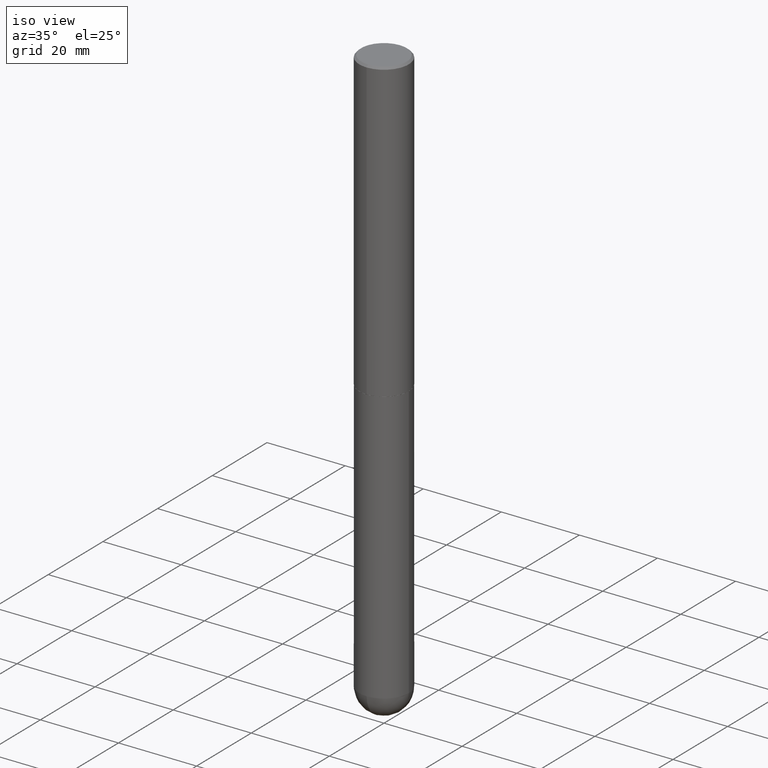
[diagram: clean part render]
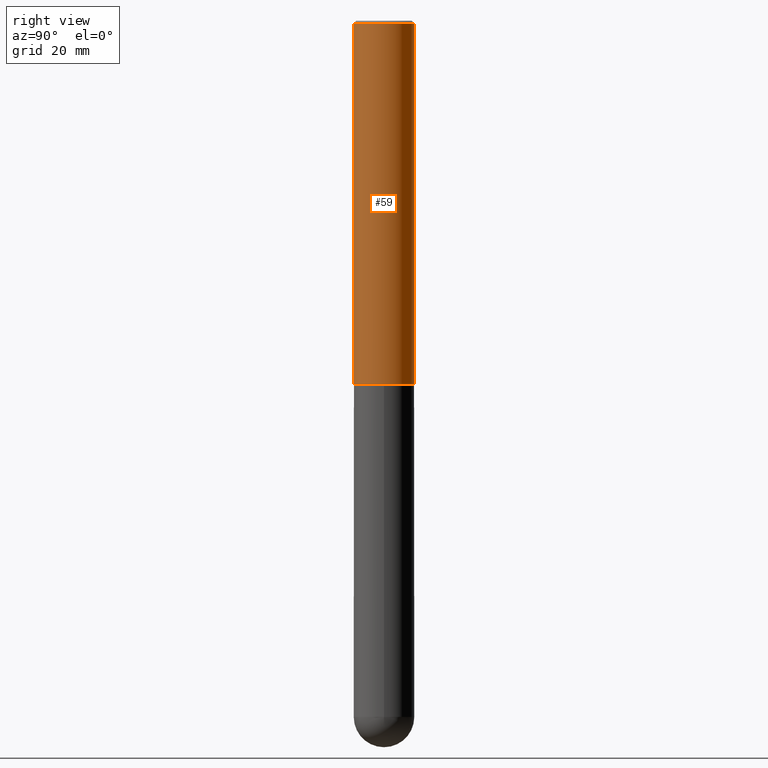
[diagram: tour spotlight — one face highlighted and labeled with its STEP entity id]
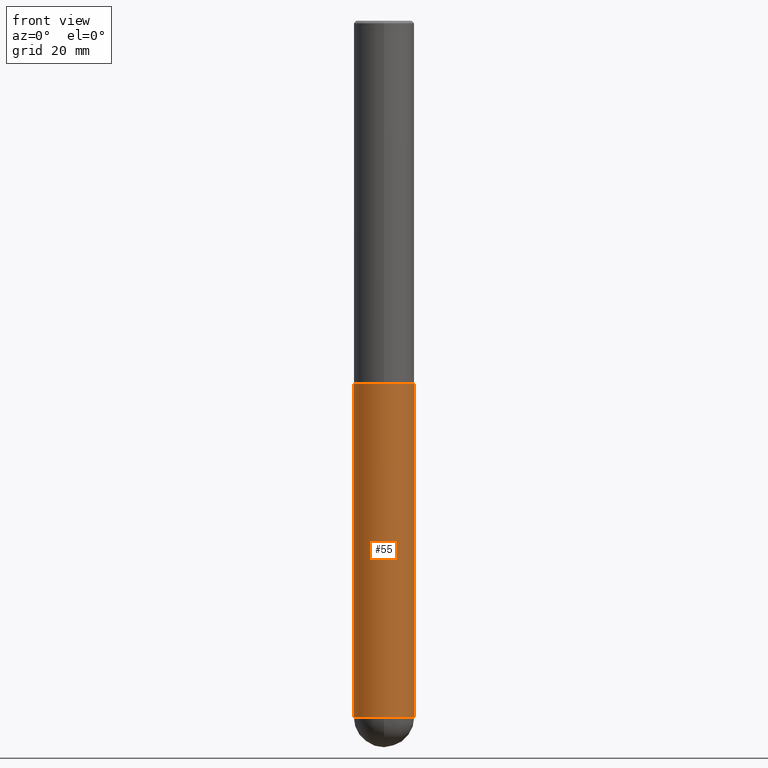
[diagram: tour spotlight — one face highlighted and labeled with its STEP entity id]
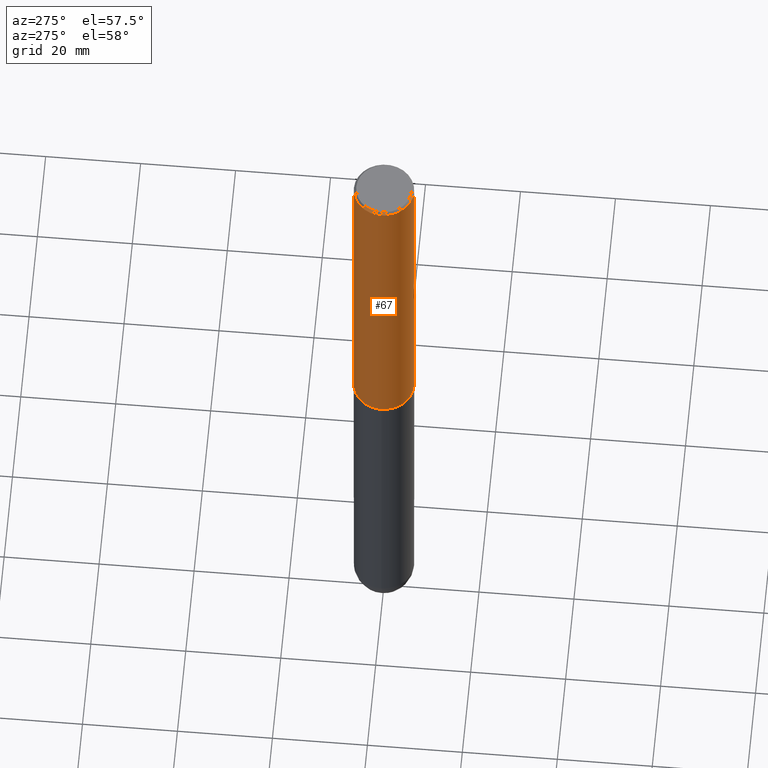
[diagram: tour spotlight — one face highlighted and labeled with its STEP entity id]
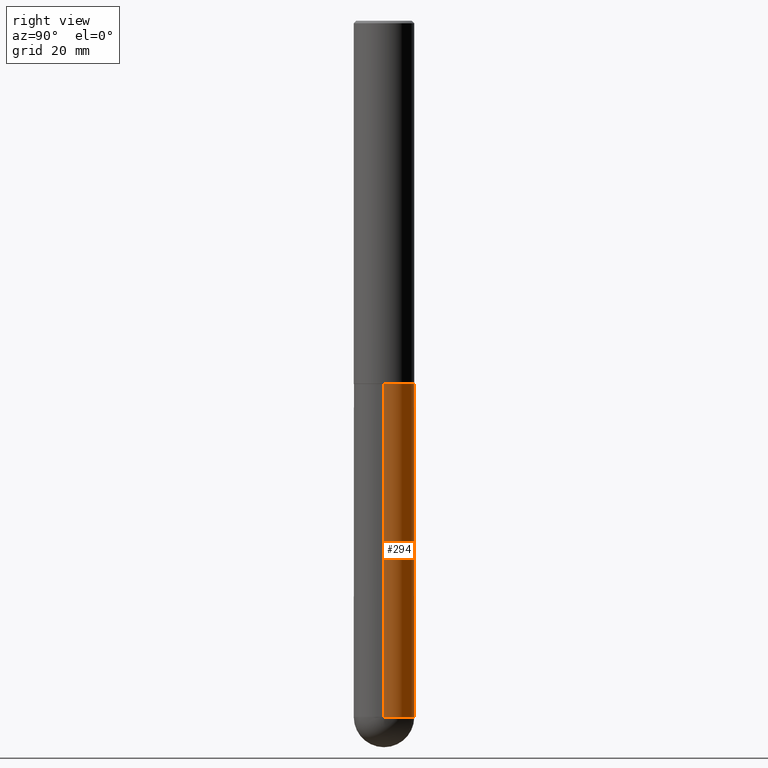
[diagram: tour spotlight — one face highlighted and labeled with its STEP entity id]
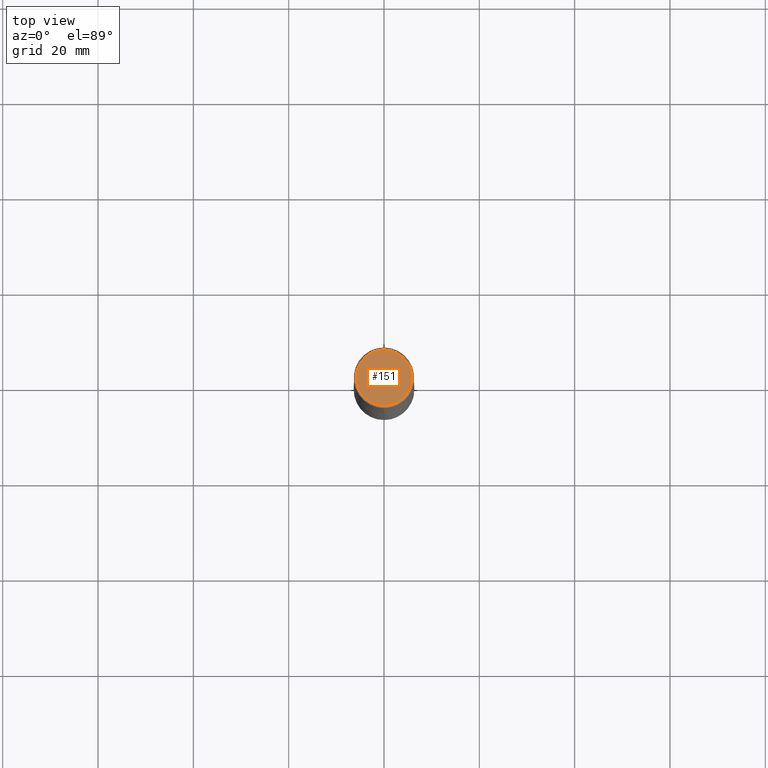
[diagram: tour spotlight — one face highlighted and labeled with its STEP entity id]
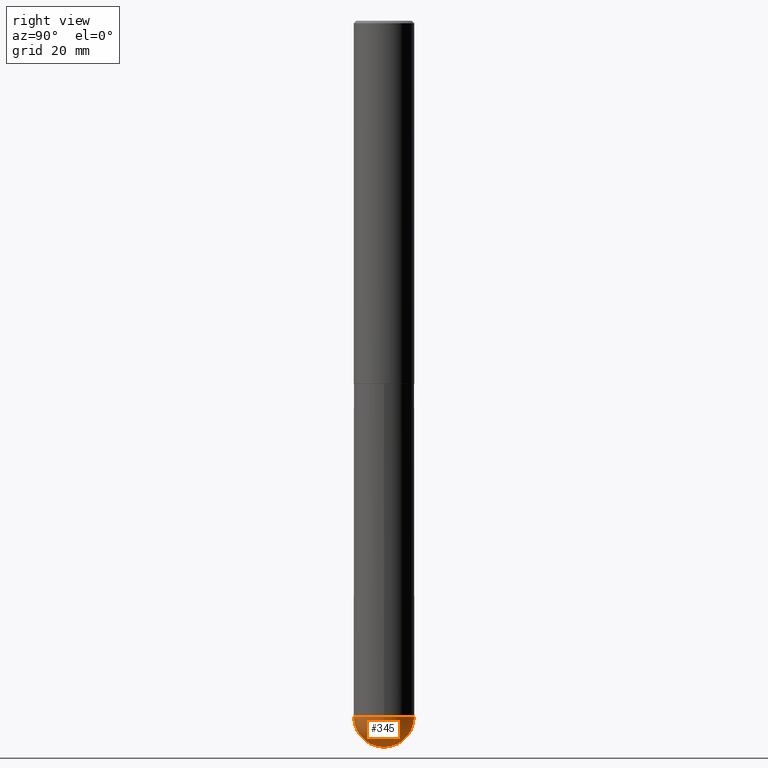
[diagram: tour spotlight — one face highlighted and labeled with its STEP entity id]
A machine part: a face-by-face anatomy tour. The part has 13 B-rep faces; the first image is the clean iso view, then the 6 largest visible faces are spotlighted one at a time (largest first), each with its STEP entity span.

Face 1 — right view, entity #59. In plain terms, the highlighted cylindrical surface (edge-blend (fillet) strip) has radius 6.35 mm, axis along (-0, 0, 1).
Definition (entity closure, byte-faithful):
#16 = DIRECTION ( 'NONE',  ( -2.445691460240369790E-29, 3.491162485563369808E-15, 1.000000000000000000 ) ) ;
#21 = CARTESIAN_POINT ( 'NONE',  ( 1.745740669421566875E-15, 0.2499999999999999167, -0.02000000000000092676 ) ) ;
#30 = FACE_OUTER_BOUND ( 'NONE', #105, .T. ) ;
#31 = EDGE_CURVE ( 'NONE', #140, #78, #185, .T. ) ;
#46 = EDGE_CURVE ( 'NONE', #206, #278, #70, .T. ) ;
#47 = DIRECTION ( 'NONE',  ( -2.445691460240369790E-29, 3.491162485563369808E-15, 1.000000000000000000 ) ) ;
#50 = VECTOR ( 'NONE', #405, 39.37007874015748143 ) ;
#59 = ADVANCED_FACE ( 'NONE', ( #30 ), #87, .T. ) ;
#60 = AXIS2_PLACEMENT_3D ( 'NONE', #239, #16, #330 ) ;
#62 = CARTESIAN_POINT ( 'NONE',  ( 1.776356839400289119E-15, 0.2499999999999898415, -2.999000000000001442 ) ) ;
#70 = LINE ( 'NONE', #329, #280 ) ;
#78 = VERTEX_POINT ( 'NONE', #218 ) ;
#87 = CYLINDRICAL_SURFACE ( 'NONE', #60, 0.2500000000000001665 ) ;
#92 = DIRECTION ( 'NONE',  ( -6.982962677686265922E-15, -1.000000000000000000, 3.483106191921935554E-15 ) ) ;
#95 = CIRCLE ( 'NONE', #319, 0.2500000000000000000 ) ;
#105 = EDGE_LOOP ( 'NONE', ( #145, #212, #270, #148 ) ) ;
#119 = CARTESIAN_POINT ( 'NONE',  ( -1.745740669421495680E-15, -0.2500000000000108247, -2.998999999999999222 ) ) ;
#140 = VERTEX_POINT ( 'NONE', #119 ) ;
#145 = ORIENTED_EDGE ( 'NONE', *, *, #220, .T. ) ;
#148 = ORIENTED_EDGE ( 'NONE', *, *, #31, .F. ) ;
#150 = CARTESIAN_POINT ( 'NONE',  ( -1.745740669421567664E-15, -0.2500000000000001665, 8.727906213908430437E-16 ) ) ;
#185 = LINE ( 'NONE', #150, #50 ) ;
#206 = VERTEX_POINT ( 'NONE', #62 ) ;
#207 = EDGE_CURVE ( 'NONE', #78, #278, #95, .T. ) ;
#212 = ORIENTED_EDGE ( 'NONE', *, *, #46, .T. ) ;
#218 = CARTESIAN_POINT ( 'NONE',  ( -1.715124499442882299E-15, -0.2500000000000000555, -0.01999999999999918510 ) ) ;
#220 = EDGE_CURVE ( 'NONE', #140, #206, #252, .T. ) ;
#239 = CARTESIAN_POINT ( 'NONE',  ( 0.000000000000000000, 0.000000000000000000, 0.000000000000000000 ) ) ;
#252 = CIRCLE ( 'NONE', #355, 0.2500000000000003331 ) ;
#261 = CARTESIAN_POINT ( 'NONE',  ( 7.334628689260870918E-29, -1.046999629420454738E-14, -2.999000000000000554 ) ) ;
#270 = ORIENTED_EDGE ( 'NONE', *, *, #207, .F. ) ;
#278 = VERTEX_POINT ( 'NONE', #21 ) ;
#280 = VECTOR ( 'NONE', #47, 39.37007874015748143 ) ;
#282 = CARTESIAN_POINT ( 'NONE',  ( 4.891382920480753452E-31, -6.982324971126759042E-17, -0.02000000000000005593 ) ) ;
#284 = DIRECTION ( 'NONE',  ( -6.982962677686265922E-15, -1.000000000000000000, 4.370956789862815627E-15 ) ) ;
#318 = DIRECTION ( 'NONE',  ( -2.445691460240369790E-29, 3.491162485563369808E-15, 1.000000000000000000 ) ) ;
#319 = AXIS2_PLACEMENT_3D ( 'NONE', #282, #318, #92 ) ;
#329 = CARTESIAN_POINT ( 'NONE',  ( 1.776356839400251254E-15, 0.2500000000000001665, -8.727906213908430437E-16 ) ) ;
#330 = DIRECTION ( 'NONE',  ( -6.982962677686265922E-15, -1.000000000000000000, 3.491162485563369808E-15 ) ) ;
#344 = DIRECTION ( 'NONE',  ( -2.445691460240369790E-29, 3.491162485563369808E-15, 1.000000000000000000 ) ) ;
#355 = AXIS2_PLACEMENT_3D ( 'NONE', #261, #344, #284 ) ;
#405 = DIRECTION ( 'NONE',  ( -2.445691460240369790E-29, 3.491162485563369808E-15, 1.000000000000000000 ) ) ;

Face 2 — front view, entity #55. In plain terms, the highlighted cylindrical surface (edge-blend (fillet) strip) has radius 6.35 mm, axis along (-0, 0, 1).
Definition (entity closure, byte-faithful):
#14 = FACE_OUTER_BOUND ( 'NONE', #402, .T. ) ;
#22 = EDGE_CURVE ( 'NONE', #56, #395, #311, .T. ) ;
#26 = CARTESIAN_POINT ( 'NONE',  ( 0.000000000000000000, 0.000000000000000000, 0.000000000000000000 ) ) ;
#28 = CARTESIAN_POINT ( 'NONE',  ( 1.406144563556453767E-28, -2.007601769834809252E-14, -5.750000000000000888 ) ) ;
#51 = VECTOR ( 'NONE', #396, 39.37007874015748143 ) ;
#55 = ADVANCED_FACE ( 'NONE', ( #14 ), #343, .T. ) ;
#56 = VERTEX_POINT ( 'NONE', #120 ) ;
#57 = DIRECTION ( 'NONE',  ( -2.445468806185136877E-29, 3.491481338843145188E-15, 1.000000000000000000 ) ) ;
#74 = CIRCLE ( 'NONE', #231, 0.2500000000000000000 ) ;
#110 = CARTESIAN_POINT ( 'NONE',  ( 0.2500000000000000000, -1.745740669421566678E-15, 1.219044193948983948E-29 ) ) ;
#116 = VERTEX_POINT ( 'NONE', #166 ) ;
#120 = CARTESIAN_POINT ( 'NONE',  ( -0.2500000000000000000, -1.349887401803851318E-14, -5.750000000000000888 ) ) ;
#125 = DIRECTION ( 'NONE',  ( 1.000000000000000000, -6.982962677686262766E-15, 0.000000000000000000 ) ) ;
#127 = AXIS2_PLACEMENT_3D ( 'NONE', #28, #292, #125 ) ;
#154 = EDGE_CURVE ( 'NONE', #395, #200, #209, .T. ) ;
#166 = CARTESIAN_POINT ( 'NONE',  ( 0.2500000000000000000, -1.702097152686033033E-14, -5.750000000000000888 ) ) ;
#167 = CARTESIAN_POINT ( 'NONE',  ( -0.2500000000000000000, 1.776356839400250465E-15, -1.229733772563726445E-29 ) ) ;
#169 = VECTOR ( 'NONE', #57, 39.37007874015748143 ) ;
#178 = CARTESIAN_POINT ( 'NONE',  ( -1.776356839400113597E-15, -0.2500000000000206501, -5.750000000000000000 ) ) ;
#186 = CARTESIAN_POINT ( 'NONE',  ( 0.2500000000000000000, -1.222018468595100303E-14, -3.000000000000000444 ) ) ;
#187 = DIRECTION ( 'NONE',  ( -2.445468806185136597E-29, 3.491481338843145583E-15, 1.000000000000000000 ) ) ;
#188 = DIRECTION ( 'NONE',  ( 1.000000000000000000, -6.982962677686266711E-15, 4.876176775795935793E-29 ) ) ;
#189 = AXIS2_PLACEMENT_3D ( 'NONE', #26, #253, #188 ) ;
#197 = VERTEX_POINT ( 'NONE', #178 ) ;
#200 = VERTEX_POINT ( 'NONE', #186 ) ;
#209 = CIRCLE ( 'NONE', #296, 0.2500000000000000000 ) ;
#231 = AXIS2_PLACEMENT_3D ( 'NONE', #346, #187, #314 ) ;
#242 = ORIENTED_EDGE ( 'NONE', *, *, #154, .F. ) ;
#244 = DIRECTION ( 'NONE',  ( 1.000000000000000000, -6.982962677686262766E-15, 0.000000000000000000 ) ) ;
#253 = DIRECTION ( 'NONE',  ( -2.445468806185136597E-29, 3.491481338843145583E-15, 1.000000000000000000 ) ) ;
#254 = EDGE_CURVE ( 'NONE', #197, #116, #74, .T. ) ;
#267 = EDGE_CURVE ( 'NONE', #116, #200, #297, .T. ) ;
#274 = ORIENTED_EDGE ( 'NONE', *, *, #22, .F. ) ;
#276 = CIRCLE ( 'NONE', #127, 0.2500000000000000000 ) ;
#291 = ORIENTED_EDGE ( 'NONE', *, *, #254, .T. ) ;
#292 = DIRECTION ( 'NONE',  ( -2.445468806185136597E-29, 3.491481338843145583E-15, 1.000000000000000000 ) ) ;
#296 = AXIS2_PLACEMENT_3D ( 'NONE', #404, #378, #244 ) ;
#297 = LINE ( 'NONE', #110, #51 ) ;
#302 = ORIENTED_EDGE ( 'NONE', *, *, #267, .T. ) ;
#311 = LINE ( 'NONE', #167, #169 ) ;
#313 = CARTESIAN_POINT ( 'NONE',  ( -0.2500000000000000000, -1.349887401803851318E-14, -3.000000000000000444 ) ) ;
#314 = DIRECTION ( 'NONE',  ( 1.000000000000000000, -6.982962677686262766E-15, 0.000000000000000000 ) ) ;
#320 = ORIENTED_EDGE ( 'NONE', *, *, #403, .T. ) ;
#343 = CYLINDRICAL_SURFACE ( 'NONE', #189, 0.2500000000000000000 ) ;
#346 = CARTESIAN_POINT ( 'NONE',  ( 1.406144563556453767E-28, -2.007601769834809252E-14, -5.750000000000000888 ) ) ;
#378 = DIRECTION ( 'NONE',  ( -2.445468806185136597E-29, 3.491481338843145583E-15, 1.000000000000000000 ) ) ;
#395 = VERTEX_POINT ( 'NONE', #313 ) ;
#396 = DIRECTION ( 'NONE',  ( -2.445468806185136877E-29, 3.491481338843145188E-15, 1.000000000000000000 ) ) ;
#402 = EDGE_LOOP ( 'NONE', ( #274, #320, #291, #302, #242 ) ) ;
#403 = EDGE_CURVE ( 'NONE', #56, #197, #276, .T. ) ;
#404 = CARTESIAN_POINT ( 'NONE',  ( 7.336406418555409790E-29, -1.047444401652943635E-14, -3.000000000000000444 ) ) ;

Face 3 — auxiliary view, entity #67. In plain terms, the highlighted cylindrical surface (edge-blend (fillet) strip) has radius 6.35 mm, axis along (-0, 0, 1).
Definition (entity closure, byte-faithful):
#6 = CIRCLE ( 'NONE', #295, 0.2500000000000000000 ) ;
#21 = CARTESIAN_POINT ( 'NONE',  ( 1.745740669421566875E-15, 0.2499999999999999167, -0.02000000000000092676 ) ) ;
#31 = EDGE_CURVE ( 'NONE', #140, #78, #185, .T. ) ;
#46 = EDGE_CURVE ( 'NONE', #206, #278, #70, .T. ) ;
#47 = DIRECTION ( 'NONE',  ( -2.445691460240369790E-29, 3.491162485563369808E-15, 1.000000000000000000 ) ) ;
#50 = VECTOR ( 'NONE', #405, 39.37007874015748143 ) ;
#62 = CARTESIAN_POINT ( 'NONE',  ( 1.776356839400289119E-15, 0.2499999999999898415, -2.999000000000001442 ) ) ;
#63 = EDGE_CURVE ( 'NONE', #278, #78, #6, .T. ) ;
#67 = ADVANCED_FACE ( 'NONE', ( #170 ), #73, .T. ) ;
#70 = LINE ( 'NONE', #329, #280 ) ;
#73 = CYLINDRICAL_SURFACE ( 'NONE', #222, 0.2500000000000001665 ) ;
#78 = VERTEX_POINT ( 'NONE', #218 ) ;
#94 = ORIENTED_EDGE ( 'NONE', *, *, #46, .F. ) ;
#98 = ORIENTED_EDGE ( 'NONE', *, *, #63, .F. ) ;
#107 = ORIENTED_EDGE ( 'NONE', *, *, #31, .T. ) ;
#119 = CARTESIAN_POINT ( 'NONE',  ( -1.745740669421495680E-15, -0.2500000000000108247, -2.998999999999999222 ) ) ;
#129 = DIRECTION ( 'NONE',  ( -6.982962677686265922E-15, -1.000000000000000000, 4.370956789862815627E-15 ) ) ;
#140 = VERTEX_POINT ( 'NONE', #119 ) ;
#144 = DIRECTION ( 'NONE',  ( -2.445691460240369790E-29, 3.491162485563369808E-15, 1.000000000000000000 ) ) ;
#150 = CARTESIAN_POINT ( 'NONE',  ( -1.745740669421567664E-15, -0.2500000000000001665, 8.727906213908430437E-16 ) ) ;
#170 = FACE_OUTER_BOUND ( 'NONE', #336, .T. ) ;
#179 = DIRECTION ( 'NONE',  ( -6.982962677686265922E-15, -1.000000000000000000, 3.491162485563369808E-15 ) ) ;
#182 = DIRECTION ( 'NONE',  ( -2.445691460240369790E-29, 3.491162485563369808E-15, 1.000000000000000000 ) ) ;
#185 = LINE ( 'NONE', #150, #50 ) ;
#206 = VERTEX_POINT ( 'NONE', #62 ) ;
#218 = CARTESIAN_POINT ( 'NONE',  ( -1.715124499442882299E-15, -0.2500000000000000555, -0.01999999999999918510 ) ) ;
#222 = AXIS2_PLACEMENT_3D ( 'NONE', #390, #144, #179 ) ;
#255 = DIRECTION ( 'NONE',  ( -2.445691460240369790E-29, 3.491162485563369808E-15, 1.000000000000000000 ) ) ;
#265 = DIRECTION ( 'NONE',  ( -6.982962677686265922E-15, -1.000000000000000000, 3.483106191921935554E-15 ) ) ;
#269 = CIRCLE ( 'NONE', #310, 0.2500000000000003331 ) ;
#278 = VERTEX_POINT ( 'NONE', #21 ) ;
#280 = VECTOR ( 'NONE', #47, 39.37007874015748143 ) ;
#295 = AXIS2_PLACEMENT_3D ( 'NONE', #337, #182, #265 ) ;
#310 = AXIS2_PLACEMENT_3D ( 'NONE', #381, #255, #129 ) ;
#329 = CARTESIAN_POINT ( 'NONE',  ( 1.776356839400251254E-15, 0.2500000000000001665, -8.727906213908430437E-16 ) ) ;
#336 = EDGE_LOOP ( 'NONE', ( #94, #397, #107, #98 ) ) ;
#337 = CARTESIAN_POINT ( 'NONE',  ( 4.891382920480753452E-31, -6.982324971126759042E-17, -0.02000000000000005593 ) ) ;
#381 = CARTESIAN_POINT ( 'NONE',  ( 7.334628689260870918E-29, -1.046999629420454738E-14, -2.999000000000000554 ) ) ;
#386 = EDGE_CURVE ( 'NONE', #206, #140, #269, .T. ) ;
#390 = CARTESIAN_POINT ( 'NONE',  ( 0.000000000000000000, 0.000000000000000000, 0.000000000000000000 ) ) ;
#397 = ORIENTED_EDGE ( 'NONE', *, *, #386, .T. ) ;
#405 = DIRECTION ( 'NONE',  ( -2.445691460240369790E-29, 3.491162485563369808E-15, 1.000000000000000000 ) ) ;

Face 4 — right view, entity #294. In plain terms, the highlighted cylindrical surface (edge-blend (fillet) strip) has radius 6.35 mm, axis along (-0, 0, 1).
Definition (entity closure, byte-faithful):
#11 = CARTESIAN_POINT ( 'NONE',  ( 1.406144563556453767E-28, -2.007601769834809252E-14, -5.750000000000000888 ) ) ;
#12 = DIRECTION ( 'NONE',  ( -2.445468806185136597E-29, 3.491481338843145583E-15, 1.000000000000000000 ) ) ;
#20 = VERTEX_POINT ( 'NONE', #338 ) ;
#22 = EDGE_CURVE ( 'NONE', #56, #395, #311, .T. ) ;
#39 = CIRCLE ( 'NONE', #83, 0.2500000000000000000 ) ;
#51 = VECTOR ( 'NONE', #396, 39.37007874015748143 ) ;
#52 = EDGE_LOOP ( 'NONE', ( #132, #171, #332, #53, #236 ) ) ;
#53 = ORIENTED_EDGE ( 'NONE', *, *, #267, .F. ) ;
#56 = VERTEX_POINT ( 'NONE', #120 ) ;
#57 = DIRECTION ( 'NONE',  ( -2.445468806185136877E-29, 3.491481338843145188E-15, 1.000000000000000000 ) ) ;
#66 = CARTESIAN_POINT ( 'NONE',  ( 7.336406418555409790E-29, -1.047444401652943635E-14, -3.000000000000000444 ) ) ;
#83 = AXIS2_PLACEMENT_3D ( 'NONE', #357, #12, #135 ) ;
#84 = EDGE_CURVE ( 'NONE', #200, #395, #347, .T. ) ;
#97 = EDGE_CURVE ( 'NONE', #20, #56, #39, .T. ) ;
#110 = CARTESIAN_POINT ( 'NONE',  ( 0.2500000000000000000, -1.745740669421566678E-15, 1.219044193948983948E-29 ) ) ;
#116 = VERTEX_POINT ( 'NONE', #166 ) ;
#120 = CARTESIAN_POINT ( 'NONE',  ( -0.2500000000000000000, -1.349887401803851318E-14, -5.750000000000000888 ) ) ;
#132 = ORIENTED_EDGE ( 'NONE', *, *, #97, .T. ) ;
#135 = DIRECTION ( 'NONE',  ( 1.000000000000000000, -6.982962677686262766E-15, 0.000000000000000000 ) ) ;
#141 = FACE_OUTER_BOUND ( 'NONE', #52, .T. ) ;
#153 = CIRCLE ( 'NONE', #205, 0.2500000000000000000 ) ;
#166 = CARTESIAN_POINT ( 'NONE',  ( 0.2500000000000000000, -1.702097152686033033E-14, -5.750000000000000888 ) ) ;
#167 = CARTESIAN_POINT ( 'NONE',  ( -0.2500000000000000000, 1.776356839400250465E-15, -1.229733772563726445E-29 ) ) ;
#169 = VECTOR ( 'NONE', #57, 39.37007874015748143 ) ;
#171 = ORIENTED_EDGE ( 'NONE', *, *, #22, .T. ) ;
#177 = CARTESIAN_POINT ( 'NONE',  ( 0.000000000000000000, 0.000000000000000000, 0.000000000000000000 ) ) ;
#186 = CARTESIAN_POINT ( 'NONE',  ( 0.2500000000000000000, -1.222018468595100303E-14, -3.000000000000000444 ) ) ;
#200 = VERTEX_POINT ( 'NONE', #186 ) ;
#205 = AXIS2_PLACEMENT_3D ( 'NONE', #11, #271, #393 ) ;
#236 = ORIENTED_EDGE ( 'NONE', *, *, #304, .T. ) ;
#267 = EDGE_CURVE ( 'NONE', #116, #200, #297, .T. ) ;
#271 = DIRECTION ( 'NONE',  ( -2.445468806185136597E-29, 3.491481338843145583E-15, 1.000000000000000000 ) ) ;
#294 = ADVANCED_FACE ( 'NONE', ( #141 ), #328, .T. ) ;
#297 = LINE ( 'NONE', #110, #51 ) ;
#304 = EDGE_CURVE ( 'NONE', #116, #20, #153, .T. ) ;
#311 = LINE ( 'NONE', #167, #169 ) ;
#313 = CARTESIAN_POINT ( 'NONE',  ( -0.2500000000000000000, -1.349887401803851318E-14, -3.000000000000000444 ) ) ;
#324 = DIRECTION ( 'NONE',  ( 1.000000000000000000, -6.982962677686262766E-15, 0.000000000000000000 ) ) ;
#328 = CYLINDRICAL_SURFACE ( 'NONE', #377, 0.2500000000000000000 ) ;
#332 = ORIENTED_EDGE ( 'NONE', *, *, #84, .F. ) ;
#338 = CARTESIAN_POINT ( 'NONE',  ( 1.745740669421707884E-15, 0.2499999999999800160, -5.750000000000001776 ) ) ;
#341 = DIRECTION ( 'NONE',  ( -2.445468806185136597E-29, 3.491481338843145583E-15, 1.000000000000000000 ) ) ;
#347 = CIRCLE ( 'NONE', #398, 0.2500000000000000000 ) ;
#357 = CARTESIAN_POINT ( 'NONE',  ( 1.406144563556453767E-28, -2.007601769834809252E-14, -5.750000000000000888 ) ) ;
#368 = DIRECTION ( 'NONE',  ( -2.445468806185136597E-29, 3.491481338843145583E-15, 1.000000000000000000 ) ) ;
#377 = AXIS2_PLACEMENT_3D ( 'NONE', #177, #368, #388 ) ;
#388 = DIRECTION ( 'NONE',  ( 1.000000000000000000, -6.982962677686266711E-15, 4.876176775795935793E-29 ) ) ;
#393 = DIRECTION ( 'NONE',  ( 1.000000000000000000, -6.982962677686262766E-15, 0.000000000000000000 ) ) ;
#395 = VERTEX_POINT ( 'NONE', #313 ) ;
#396 = DIRECTION ( 'NONE',  ( -2.445468806185136877E-29, 3.491481338843145188E-15, 1.000000000000000000 ) ) ;
#398 = AXIS2_PLACEMENT_3D ( 'NONE', #66, #341, #324 ) ;

Face 5 — top view, entity #151. In plain terms, the highlighted planar face has unit normal (0, -0, -1).
Definition (entity closure, byte-faithful):
#13 = AXIS2_PLACEMENT_3D ( 'NONE', #112, #152, #309 ) ;
#58 = FACE_OUTER_BOUND ( 'NONE', #372, .T. ) ;
#112 = CARTESIAN_POINT ( 'NONE',  ( 1.606081415867848364E-15, 0.2300000000000010369, -1.313091282373752052E-15 ) ) ;
#151 = ADVANCED_FACE ( 'NONE', ( #58 ), #312, .F. ) ;
#152 = DIRECTION ( 'NONE',  ( 2.445691460240369509E-29, -3.491162485563369808E-15, -1.000000000000000000 ) ) ;
#157 = DIRECTION ( 'NONE',  ( -6.982962677686265922E-15, -1.000000000000000000, 3.491162485563369808E-15 ) ) ;
#203 = EDGE_CURVE ( 'NONE', #208, #247, #407, .T. ) ;
#208 = VERTEX_POINT ( 'NONE', #380 ) ;
#228 = CARTESIAN_POINT ( 'NONE',  ( 1.675911042644707718E-15, 0.2300000000000010369, -1.823215193067925174E-15 ) ) ;
#234 = ORIENTED_EDGE ( 'NONE', *, *, #273, .T. ) ;
#241 = DIRECTION ( 'NONE',  ( -6.982962677686265922E-15, -1.000000000000000000, 3.491162485563369808E-15 ) ) ;
#247 = VERTEX_POINT ( 'NONE', #228 ) ;
#250 = CARTESIAN_POINT ( 'NONE',  ( 2.495211384098321414E-44, -3.561850920008753567E-30, -1.020247821388346639E-15 ) ) ;
#272 = ORIENTED_EDGE ( 'NONE', *, *, #203, .T. ) ;
#273 = EDGE_CURVE ( 'NONE', #247, #208, #401, .T. ) ;
#281 = AXIS2_PLACEMENT_3D ( 'NONE', #399, #360, #241 ) ;
#309 = DIRECTION ( 'NONE',  ( 6.982962677686265922E-15, 1.000000000000000000, -3.491162485563369808E-15 ) ) ;
#312 = PLANE ( 'NONE',  #13 ) ;
#360 = DIRECTION ( 'NONE',  ( -2.445691460240369790E-29, 3.491162485563369808E-15, 1.000000000000000000 ) ) ;
#372 = EDGE_LOOP ( 'NONE', ( #234, #272 ) ) ;
#375 = DIRECTION ( 'NONE',  ( -2.445691460240369790E-29, 3.491162485563369808E-15, 1.000000000000000000 ) ) ;
#380 = CARTESIAN_POINT ( 'NONE',  ( -1.646519519465170715E-15, -0.2300000000000010369, -2.172804497087680306E-16 ) ) ;
#383 = AXIS2_PLACEMENT_3D ( 'NONE', #250, #375, #157 ) ;
#399 = CARTESIAN_POINT ( 'NONE',  ( 2.495211384098321414E-44, -3.561850920008753567E-30, -1.020247821388346639E-15 ) ) ;
#401 = CIRCLE ( 'NONE', #281, 0.2300000000000010369 ) ;
#407 = CIRCLE ( 'NONE', #383, 0.2300000000000010369 ) ;

Face 6 — right view, entity #345. In plain terms, the highlighted spherical surface has radius 6.35 mm.
Definition (entity closure, byte-faithful):
#2 = CARTESIAN_POINT ( 'NONE',  ( 1.373032585765065255E-28, -2.055020006648814124E-14, -5.750000000000000888 ) ) ;
#8 = ORIENTED_EDGE ( 'NONE', *, *, #379, .F. ) ;
#10 = EDGE_LOOP ( 'NONE', ( #8, #371, #75, #17 ) ) ;
#11 = CARTESIAN_POINT ( 'NONE',  ( 1.406144563556453767E-28, -2.007601769834809252E-14, -5.750000000000000888 ) ) ;
#17 = ORIENTED_EDGE ( 'NONE', *, *, #254, .F. ) ;
#18 = DIRECTION ( 'NONE',  ( -1.000000000000000000, 6.982962677686265922E-15, -4.883557194083112340E-29 ) ) ;
#20 = VERTEX_POINT ( 'NONE', #338 ) ;
#24 = AXIS2_PLACEMENT_3D ( 'NONE', #2, #122, #412 ) ;
#40 = CIRCLE ( 'NONE', #24, 0.2500000000000006661 ) ;
#74 = CIRCLE ( 'NONE', #231, 0.2500000000000000000 ) ;
#75 = ORIENTED_EDGE ( 'NONE', *, *, #304, .F. ) ;
#99 = CARTESIAN_POINT ( 'NONE',  ( 1.373032585765065255E-28, -2.055020006648814124E-14, -5.750000000000000888 ) ) ;
#116 = VERTEX_POINT ( 'NONE', #166 ) ;
#122 = DIRECTION ( 'NONE',  ( -1.000000000000000000, 7.105427357601001070E-15, -4.926315508542082329E-29 ) ) ;
#131 = AXIS2_PLACEMENT_3D ( 'NONE', #303, #211, #391 ) ;
#143 = DIRECTION ( 'NONE',  ( 6.982962677686265922E-15, 1.000000000000000000, -4.370956789862809317E-15 ) ) ;
#153 = CIRCLE ( 'NONE', #205, 0.2500000000000000000 ) ;
#166 = CARTESIAN_POINT ( 'NONE',  ( 0.2500000000000000000, -1.702097152686033033E-14, -5.750000000000000888 ) ) ;
#173 = FACE_OUTER_BOUND ( 'NONE', #10, .T. ) ;
#178 = CARTESIAN_POINT ( 'NONE',  ( -1.776356839400113597E-15, -0.2500000000000206501, -5.750000000000000000 ) ) ;
#187 = DIRECTION ( 'NONE',  ( -2.445468806185136597E-29, 3.491481338843145583E-15, 1.000000000000000000 ) ) ;
#197 = VERTEX_POINT ( 'NONE', #178 ) ;
#205 = AXIS2_PLACEMENT_3D ( 'NONE', #11, #271, #393 ) ;
#211 = DIRECTION ( 'NONE',  ( 1.000000000000000000, -6.982962677686265922E-15, 4.883557194083112340E-29 ) ) ;
#231 = AXIS2_PLACEMENT_3D ( 'NONE', #346, #187, #314 ) ;
#254 = EDGE_CURVE ( 'NONE', #197, #116, #74, .T. ) ;
#271 = DIRECTION ( 'NONE',  ( -2.445468806185136597E-29, 3.491481338843145583E-15, 1.000000000000000000 ) ) ;
#303 = CARTESIAN_POINT ( 'NONE',  ( 1.373032585765065255E-28, -2.055020006648814124E-14, -5.750000000000000888 ) ) ;
#304 = EDGE_CURVE ( 'NONE', #116, #20, #153, .T. ) ;
#305 = VERTEX_POINT ( 'NONE', #365 ) ;
#306 = SPHERICAL_SURFACE ( 'NONE', #370, 0.2500000000000006661 ) ;
#314 = DIRECTION ( 'NONE',  ( 1.000000000000000000, -6.982962677686262766E-15, 0.000000000000000000 ) ) ;
#335 = EDGE_CURVE ( 'NONE', #305, #20, #340, .T. ) ;
#338 = CARTESIAN_POINT ( 'NONE',  ( 1.745740669421707884E-15, 0.2499999999999800160, -5.750000000000001776 ) ) ;
#340 = CIRCLE ( 'NONE', #131, 0.2500000000000006661 ) ;
#345 = ADVANCED_FACE ( 'NONE', ( #173 ), #306, .T. ) ;
#346 = CARTESIAN_POINT ( 'NONE',  ( 1.406144563556453767E-28, -2.007601769834809252E-14, -5.750000000000000888 ) ) ;
#365 = CARTESIAN_POINT ( 'NONE',  ( 1.435238263781167989E-28, -2.140776231620958900E-14, -6.000000000000001776 ) ) ;
#370 = AXIS2_PLACEMENT_3D ( 'NONE', #99, #18, #143 ) ;
#371 = ORIENTED_EDGE ( 'NONE', *, *, #335, .T. ) ;
#379 = EDGE_CURVE ( 'NONE', #305, #197, #40, .T. ) ;
#391 = DIRECTION ( 'NONE',  ( 6.982962677686266711E-15, 1.000000000000000000, 0.000000000000000000 ) ) ;
#393 = DIRECTION ( 'NONE',  ( 1.000000000000000000, -6.982962677686262766E-15, 0.000000000000000000 ) ) ;
#412 = DIRECTION ( 'NONE',  ( -7.105427357601001859E-15, -1.000000000000000000, 0.000000000000000000 ) ) ;